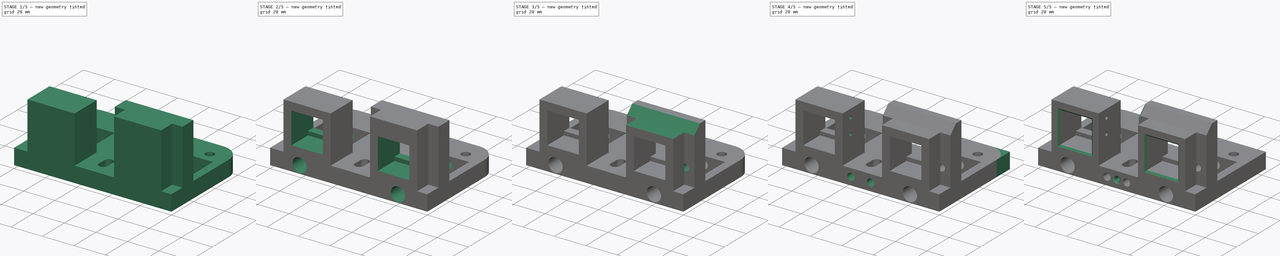
[diagram: build sequence overview — one tinted view per stage of 5, left to right]
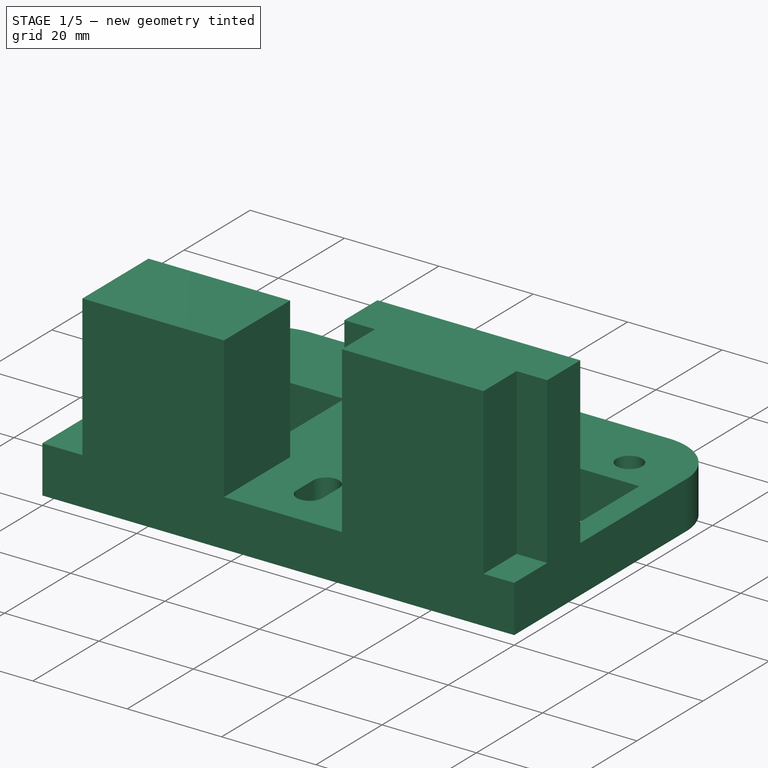
[diagram: stage 1 of 5 — iso view after this stage's code; geometry added in this stage tinted green]
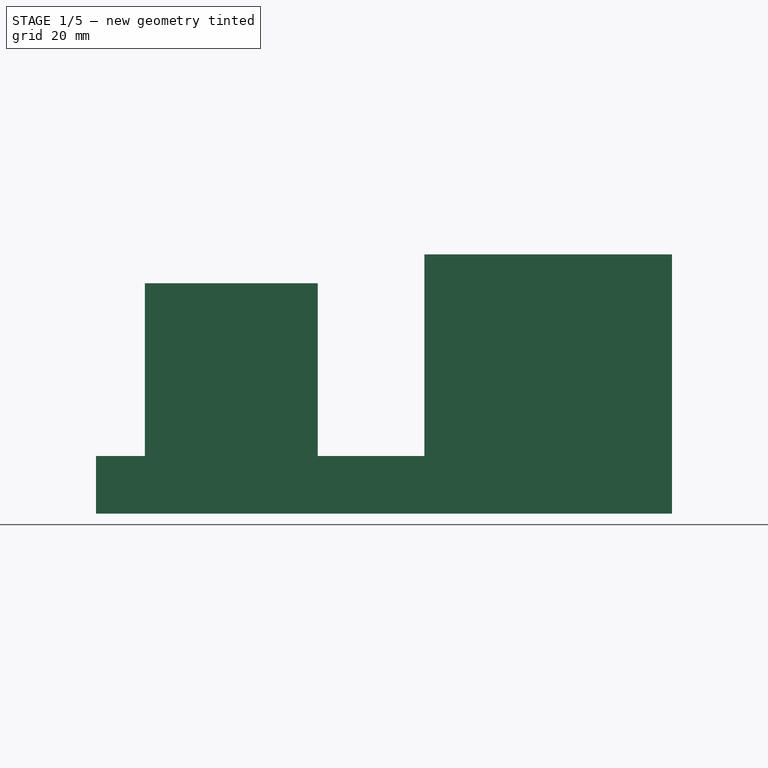
[diagram: stage 1 of 5 — front view after this stage's code; geometry added in this stage tinted green]
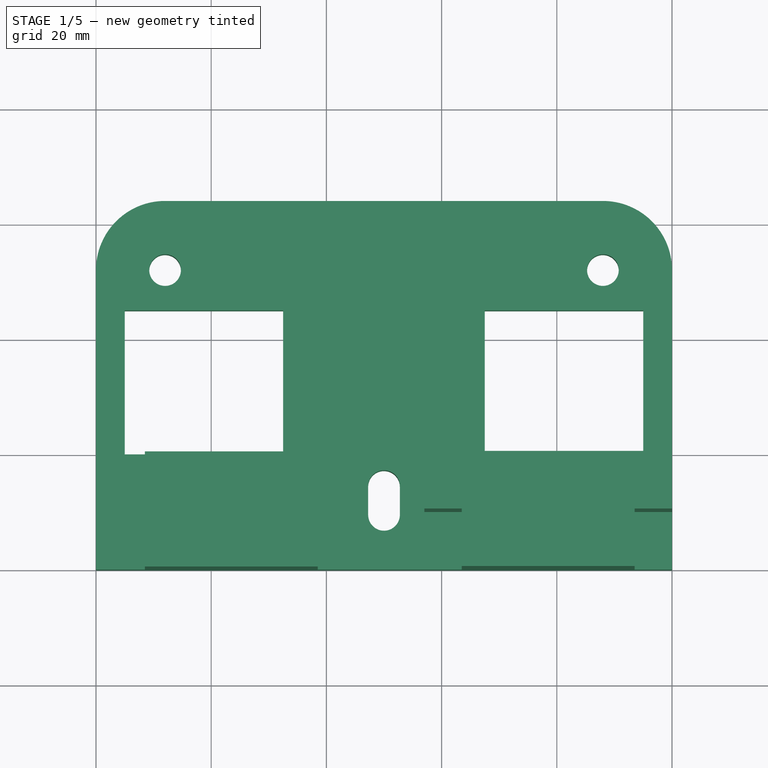
[diagram: stage 1 of 5 — top view after this stage's code; geometry added in this stage tinted green]
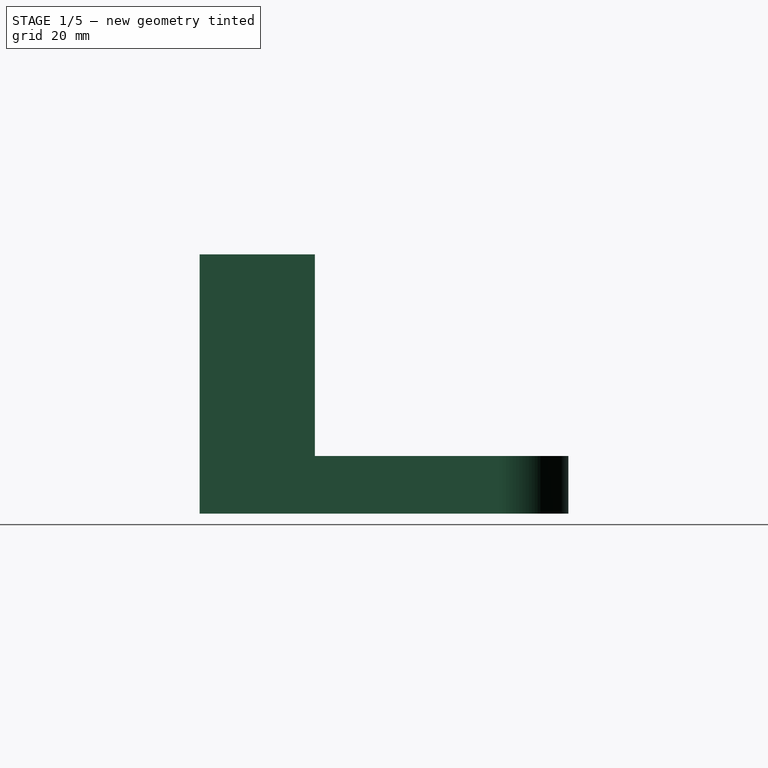
[diagram: stage 1 of 5 — right view after this stage's code; geometry added in this stage tinted green]
FCSTD DOCUMENT  (FreeCAD 0.20R29177 (Git))
Label: X gantry Top
License: All rights reserved
LicenseURL: http://en.wikipedia.org/wiki/All_rights_reserved
objects: Sketcher::SketchObject×14, PartDesign::Pocket×6, PartDesign::Pad×4, PartDesign::Hole×4, PartDesign::Chamfer×3, PartDesign::Body×1
note: 49 computed .brp shape members not serialized (recipe doc carries the construction recipe); baked Part::Feature solids carry a one-line shape summary decoded from their .brp

FEATURE [Sketcher::SketchObject] Sketch
  FullyConstrained = false
  MapMode = 5
  Support = -> [XY_Plane]
  sketch-geometry (48):
    g0: LineSegment StartX=100 StartY=0 StartZ=0 EndX=100 EndY=52 EndZ=0
    g1: LineSegment StartX=12 StartY=52 StartZ=0 EndX=88 EndY=52 EndZ=0
    g2: LineSegment StartX=88 StartY=52 StartZ=0 EndX=88 EndY=12 EndZ=0
    g3: LineSegment StartX=88 StartY=12 StartZ=0 EndX=12 EndY=12 EndZ=0
    g4: LineSegment StartX=12 StartY=12 StartZ=0 EndX=12 EndY=52 EndZ=0
    g5: ArcOfCircle CenterX=88 CenterY=52 CenterZ=0 NormalX=0 NormalY=0 NormalZ=1 AngleXU=0 Radius=12 StartAngle=4e-16 EndAngle=1.5708
    g6: LineSegment StartX=32.5 StartY=45 StartZ=0 EndX=32.5 EndY=20 EndZ=0
    g7: LineSegment StartX=32.5 StartY=20 StartZ=0 EndX=5 EndY=20 EndZ=0
    g8: ArcOfCircle CenterX=12 CenterY=52 CenterZ=0 NormalX=0 NormalY=0 NormalZ=1 AngleXU=0 Radius=12 StartAngle=1.5708 EndAngle=3.14159
    g9: LineSegment StartX=12 StartY=64 StartZ=0 EndX=88 EndY=64 EndZ=0
    g10: LineSegment StartX=5 StartY=45 StartZ=0 EndX=5 EndY=20 EndZ=0
    g11: LineSegment StartX=0 StartY=52 StartZ=0 EndX=0 EndY=0 EndZ=0
    g12: LineSegment StartX=18.75 StartY=45 StartZ=0 EndX=18.75 EndY=20 EndZ=0
    g13: LineSegment StartX=5 StartY=45 StartZ=0 EndX=18.75 EndY=45 EndZ=0
    g14: LineSegment StartX=18.75 StartY=45 StartZ=0 EndX=32.5 EndY=45 EndZ=0
    g15: LineSegment StartX=67.5 StartY=45 StartZ=0 EndX=95 EndY=45 EndZ=0
    g16: LineSegment StartX=95 StartY=45 StartZ=0 EndX=95 EndY=20 EndZ=0
    g17: LineSegment StartX=95 StartY=20 StartZ=0 EndX=67.5 EndY=20 EndZ=0
    g18: LineSegment StartX=67.5 StartY=20 StartZ=0 EndX=67.5 EndY=45 EndZ=0
    g19: LineSegment StartX=0 StartY=0 StartZ=0 EndX=100 EndY=0 EndZ=0
    g20: LineSegment StartX=12 StartY=52 StartZ=0 EndX=12 EndY=64 EndZ=0
    g21: LineSegment StartX=12 StartY=12 StartZ=0 EndX=12 EndY=0 EndZ=0
    g22: LineSegment StartX=12 StartY=52 StartZ=0 EndX=50 EndY=12 EndZ=0
    g23: LineSegment StartX=50 StartY=12 StartZ=0 EndX=88 EndY=52 EndZ=0
    g24: Circle CenterX=12 CenterY=52 CenterZ=0 NormalX=0 NormalY=0 NormalZ=1 AngleXU=0 Radius=2.75
    g25: Circle CenterX=88 CenterY=52 CenterZ=0 NormalX=0 NormalY=0 NormalZ=1 AngleXU=0 Radius=2.75
    g26: LineSegment StartX=50 StartY=12 StartZ=0 EndX=67.5 EndY=20 EndZ=0
    g27: Circle CenterX=50 CenterY=12 CenterZ=0 NormalX=0 NormalY=0 NormalZ=1 AngleXU=0 Radius=2.75
    g28: ArcOfCircle CenterX=50 CenterY=9.49999 CenterZ=0 NormalX=0 NormalY=0 NormalZ=1 AngleXU=0 Radius=2.75 StartAngle=3.14159 EndAngle=6.28319
    g29: ArcOfCircle CenterX=50 CenterY=14.5 CenterZ=0 NormalX=0 NormalY=0 NormalZ=1 AngleXU=0 Radius=2.75 StartAngle=0 EndAngle=3.14159
    g30: LineSegment StartX=52.75 StartY=9.49999 StartZ=0 EndX=52.75 EndY=14.5 EndZ=0
    g31: LineSegment StartX=47.25 StartY=9.49999 StartZ=0 EndX=47.25 EndY=14.5 EndZ=0
    g32: LineSegment StartX=50 StartY=14.5 StartZ=0 EndX=50 EndY=12 EndZ=0
    g33: LineSegment StartX=50 StartY=12 StartZ=0 EndX=50 EndY=9.49999 EndZ=0
    g34: LineSegment StartX=32.5 StartY=20 StartZ=0 EndX=50 EndY=12 EndZ=0
    g35: ArcOfCircle CenterX=42.0364 CenterY=57 CenterZ=0 NormalX=0 NormalY=0 NormalZ=1 AngleXU=0 Radius=2.7003 StartAngle=-9e-16 EndAngle=3.14159
    g36: ArcOfCircle CenterX=42.0364 CenterY=52 CenterZ=0 NormalX=0 NormalY=0 NormalZ=1 AngleXU=0 Radius=2.7003 StartAngle=3.14159 EndAngle=6.28319
    g37: LineSegment StartX=39.3361 StartY=57 StartZ=0 EndX=39.3361 EndY=52 EndZ=0
    g38: LineSegment StartX=44.7367 StartY=57 StartZ=0 EndX=44.7367 EndY=52 EndZ=0
    g39: ArcOfCircle CenterX=57.9636 CenterY=57 CenterZ=0 NormalX=0 NormalY=0 NormalZ=1 AngleXU=0 Radius=2.7003 StartAngle=5e-16 EndAngle=3.14159
    g40: ArcOfCircle CenterX=57.9636 CenterY=52 CenterZ=0 NormalX=0 NormalY=0 NormalZ=1 AngleXU=0 Radius=2.7003 StartAngle=3.14159 EndAngle=6.28319
    g41: LineSegment StartX=55.2633 StartY=57 StartZ=0 EndX=55.2633 EndY=52 EndZ=0
    g42: LineSegment StartX=60.6639 StartY=57 StartZ=0 EndX=60.6639 EndY=52 EndZ=0
    g43: LineSegment StartX=42.0364 StartY=57 StartZ=0 EndX=57.9636 EndY=57 EndZ=0
    g44: LineSegment StartX=32.5 StartY=45 StartZ=0 EndX=42.0364 EndY=57 EndZ=0
    g45: LineSegment StartX=57.9636 StartY=57 StartZ=0 EndX=67.5 EndY=45 EndZ=0
    g46: LineSegment StartX=32.5 StartY=45 StartZ=0 EndX=32.5 EndY=64 EndZ=0
    g47: LineSegment StartX=32.5 StartY=64 StartZ=0 EndX=42.0364 EndY=52 EndZ=0
  constraints (121):
    c: Vertical(g0)
    c: Coincident(g1,g2)
    c: Coincident(g2,g3)
    c: Coincident(g3,g4)
    c: Coincident(g4,g1)
    c: Horizontal(g1)
    c: Horizontal(g3)
    c: Vertical(g2)
    c: DistanceY(g4,g4) = 40
    c: Coincident(g5,g0)
    c: Coincident(g5,g1)
    c: Vertical(g6)
    c: Coincident(g7,g6)
    c: Horizontal(g7)
    c: Vertical(g4)
    c: DistanceY(g6,g6) = 25
    c: Coincident(g8,g1)
    c: Coincident(g9,g5)
    c: Equal(g5,g8)
    c: Tangent(g8,g9) = 1.5708
    c: Vertical(g10)
    c: Coincident(g11,g8)
    c: PointOnObject(g-1,g11)
    c: Coincident(g7,g10)
    c: PointOnObject(g12,g7)
    c: Vertical(g12)
    c: Coincident(g13,g10)
    c: Coincident(g13,g12)
    c: Horizontal(g13)
    c: Coincident(g14,g13)
    c: Coincident(g14,g6)
    c: Horizontal(g14)
    c: Equal(g13,g14)
    c: DistanceX(g10,g6) = 27.5
    c: Coincident(g15,g16)
    c: Coincident(g16,g17)
    c: Coincident(g17,g18)
    c: Coincident(g18,g15)
    c: Horizontal(g15)
    c: Horizontal(g17)
    c: Vertical(g16)
    c: Vertical(g18)
    c: Equal(g7,g17)
    c: PointOnObject(g6,g15)
    c: PointOnObject(g6,g17)
    c: Vertical(g11)
    c: Diameter(g8) = 24
    c: PointOnObject(g8,g1)
    c: PointOnObject(g0,g1)
    c: PointOnObject(g5,g2)
    c: Coincident(g19,g-1)
    c: Horizontal(g19)
    c: Coincident(g0,g19)
    c: PointOnObject(g11,g19)
    c: DistanceX(g19,g19) = 100
    c: Coincident(g20,g8)
    c: Coincident(g20,g8)
    c: PointOnObject(g21,g19)
    c: Vertical(g21)
    c: Equal(g20,g21)
    c: Coincident(g22,g8)
    c: PointOnObject(g22,g3)
    c: Coincident(g23,g22)
    c: Coincident(g23,g5)
    c: Equal(g22,g23)
    c: Coincident(g24,g8)
    c: Coincident(g25,g5)
    c: Diameter(g24) = 5.5
    c: Coincident(g26,g22)
    c: Coincident(g26,g17)
    c: DistanceX(g8,g10) = 5
    c: Coincident(g27,g22)
    c: Equal(g27,g25)
    c: Equal(g24,g27)
    c: Tangent(g28,g31) = 1.5708
    c: Tangent(g28,g30) = -1.5708
    c: Tangent(g30,g29) = -1.5708
    c: Tangent(g31,g29) = 1.5708
    c: Vertical(g30)
    c: Equal(g28,g29)
    c: Equal(g29,g27)
    c: Coincident(g32,g29)
    c: Coincident(g32,g27)
    c: Vertical(g32)
    c: Coincident(g33,g27)
    c: Coincident(g33,g28)
    c: Equal(g32,g33)
    c: DistanceY(g31,g31) = 5
    c: DistanceY(g11,g7) = 20
    c: Coincident(g34,g6)
    c: Coincident(g34,g22)
    c: Equal(g34,g26)
    c: Tangent(g35,g38) = 1.5708
    c: Tangent(g35,g37) = -1.5708
    c: Tangent(g37,g36) = -1.5708
    c: Tangent(g38,g36) = 1.5708
    c: Vertical(g37)
    c: Equal(g35,g36)
    c: Tangent(g39,g42) = 1.5708
    c: Tangent(g39,g41) = -1.5708
    c: Tangent(g41,g40) = -1.5708
    c: Tangent(g42,g40) = 1.5708
    c: Vertical(g41)
    c: Equal(g39,g40)
    c: Equal(g35,g39)
    c: Equal(g38,g41)
    c: Coincident(g43,g35)
    c: Coincident(g43,g39)
    c: Horizontal(g43)
    c: Coincident(g44,g6)
    c: Coincident(g44,g35)
    c: Coincident(g45,g39)
    c: Coincident(g45,g15)
    c: Equal(g45,g44)
    c: Coincident(g46,g6)
    c: PointOnObject(g46,g9)
    c: Vertical(g46)
    c: Coincident(g47,g46)
    c: Coincident(g47,g36)
    c: Equal(g47,g44)
    c: DistanceY(g40,g39) = 5
FEATURE [PartDesign::Pad] Pad
  Direction = (1,1,1)
  Length = 10
  Length2 = 100
  Profile = -> Sketch
  Type = 0
FEATURE [Sketcher::SketchObject] Sketch001
  ExternalGeometry = -> [Pad]
  FullyConstrained = true
  MapMode = 5
  Placement = pos=(0,0,10) rot=(0,0,1;0rad)
  Support = -> [Pad]
  sketch-geometry (4):
    g0: LineSegment StartX=8.5 StartY=20 StartZ=0 EndX=38.5 EndY=20 EndZ=0
    g1: LineSegment StartX=38.5 StartY=20 StartZ=0 EndX=38.5 EndY=0 EndZ=0
    g2: LineSegment StartX=38.5 StartY=0 StartZ=0 EndX=8.5 EndY=0 EndZ=0
    g3: LineSegment StartX=8.5 StartY=0 StartZ=0 EndX=8.5 EndY=20 EndZ=0
  constraints (12):
    c: Coincident(g0,g1)
    c: Coincident(g1,g2)
    c: Coincident(g2,g3)
    c: Coincident(g3,g0)
    c: Horizontal(g0)
    c: Horizontal(g2)
    c: Vertical(g1)
    c: Vertical(g3)
    c: DistanceX(g2,g2) = 30
    c: DistanceY(g3,g3) = 20
    c: PointOnObject(g-1,g2)
    c: DistanceX(g1,g-3) = 61.5
FEATURE [PartDesign::Pad] Pad001  label="Pad pipe left"
  BaseFeature = -> Pad
  Direction = (1,1,1)
  Length = 30
  Length2 = 100
  Profile = -> Sketch001
  Type = 0
FEATURE [Sketcher::SketchObject] Sketch002
  ExternalGeometry = -> [Pad001]
  FullyConstrained = true
  MapMode = 5
  Placement = pos=(0,0,10) rot=(0,0,1;0rad)
  Support = -> [Pad001]
  sketch-geometry (8):
    g0: LineSegment StartX=63.5 StartY=10 StartZ=0 EndX=57 EndY=10 EndZ=0
    g1: LineSegment StartX=93.5 StartY=10 StartZ=0 EndX=93.5 EndY=0 EndZ=0
    g2: LineSegment StartX=93.5 StartY=0 StartZ=0 EndX=63.5 EndY=0 EndZ=0
    g3: LineSegment StartX=63.5 StartY=0 StartZ=0 EndX=63.5 EndY=10 EndZ=0
    g4: LineSegment StartX=100 StartY=10 StartZ=0 EndX=100 EndY=20 EndZ=0
    g5: LineSegment StartX=100 StartY=20 StartZ=0 EndX=57 EndY=20 EndZ=0
    g6: LineSegment StartX=57 StartY=20 StartZ=0 EndX=57 EndY=10 EndZ=0
    g7: LineSegment StartX=100 StartY=10 StartZ=0 EndX=93.5 EndY=10 EndZ=0
  constraints (24):
    c: Coincident(g7,g1)
    c: Coincident(g1,g2)
    c: Coincident(g2,g3)
    c: Coincident(g3,g0)
    c: Horizontal(g0)
    c: Horizontal(g2)
    c: Vertical(g1)
    c: Vertical(g3)
    c: Coincident(g4,g5)
    c: Coincident(g5,g6)
    c: Horizontal(g5)
    c: Vertical(g4)
    c: Vertical(g6)
    c: Tangent(g0,g7)
    c: DistanceY(g4,g4) = 10
    c: Coincident(g7,g4)
    c: Equal(g6,g4)
    c: PointOnObject(g0,g6)
    c: Equal(g0,g7)
    c: PointOnObject(g-3,g2)
    c: PointOnObject(g-3,g4)
    c: DistanceX(g2,g2) = 30
    c: DistanceX(g5,g5) = 43
    c: PointOnObject(g-4,g5)
FEATURE [PartDesign::Pad] Pad002  label="Pad pipe right"
  BaseFeature = -> Pad001
  Direction = (1,1,1)
  Length = 35
  Length2 = 100
  Profile = -> Sketch002
  Type = 0
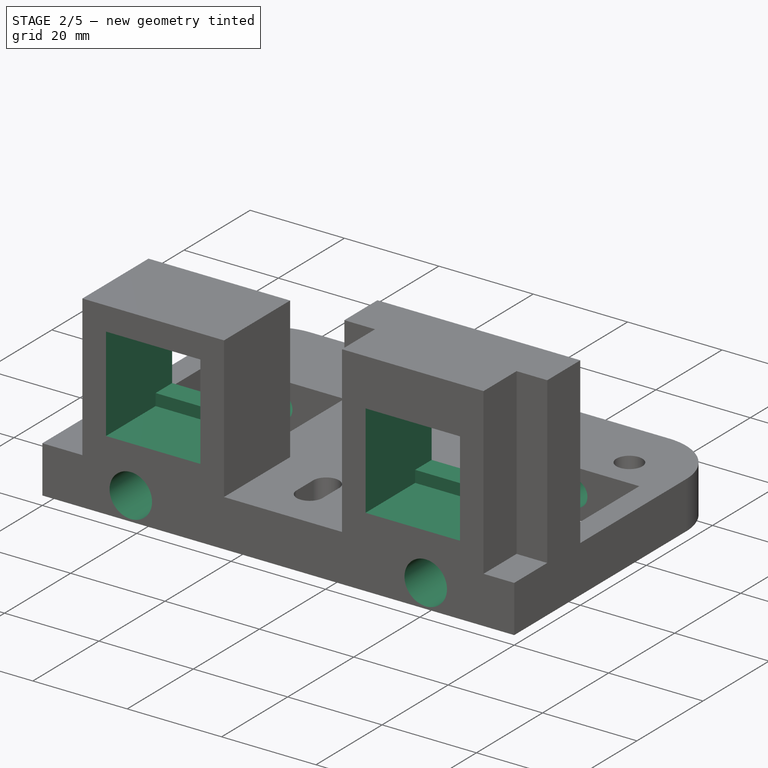
[diagram: stage 2 of 5 — iso view after this stage's code; geometry added in this stage tinted green]
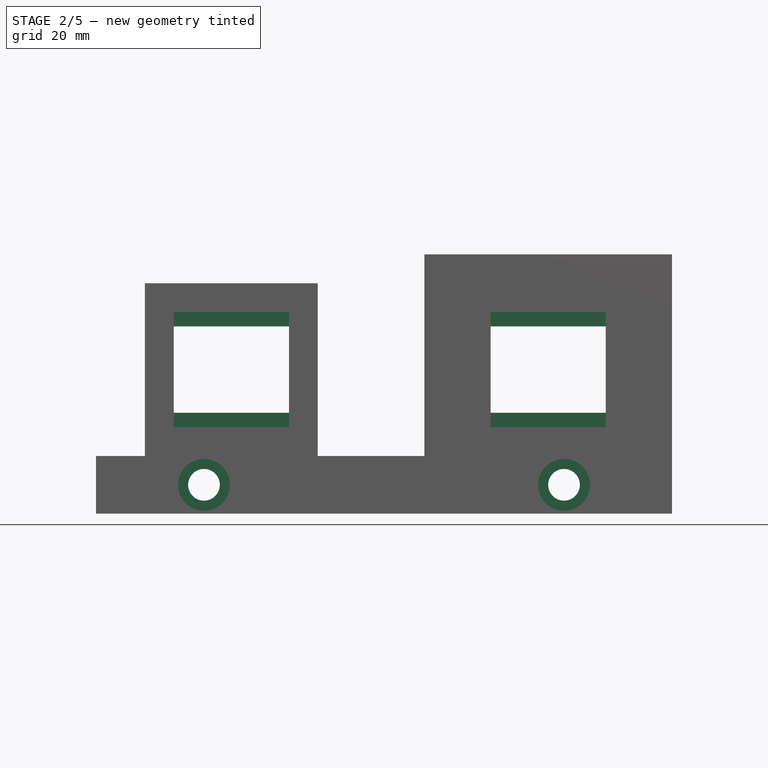
[diagram: stage 2 of 5 — front view after this stage's code; geometry added in this stage tinted green]
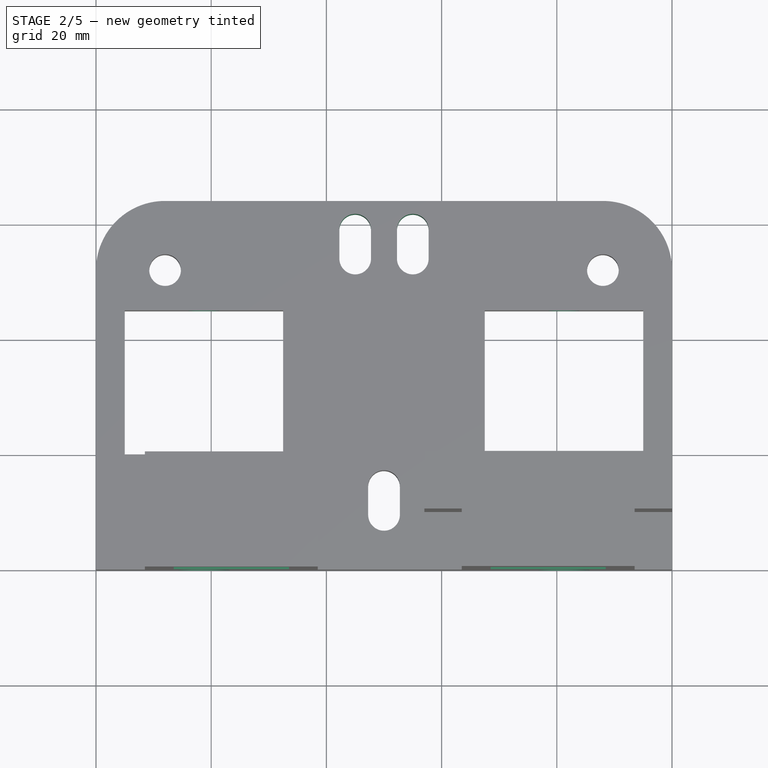
[diagram: stage 2 of 5 — top view after this stage's code; geometry added in this stage tinted green]
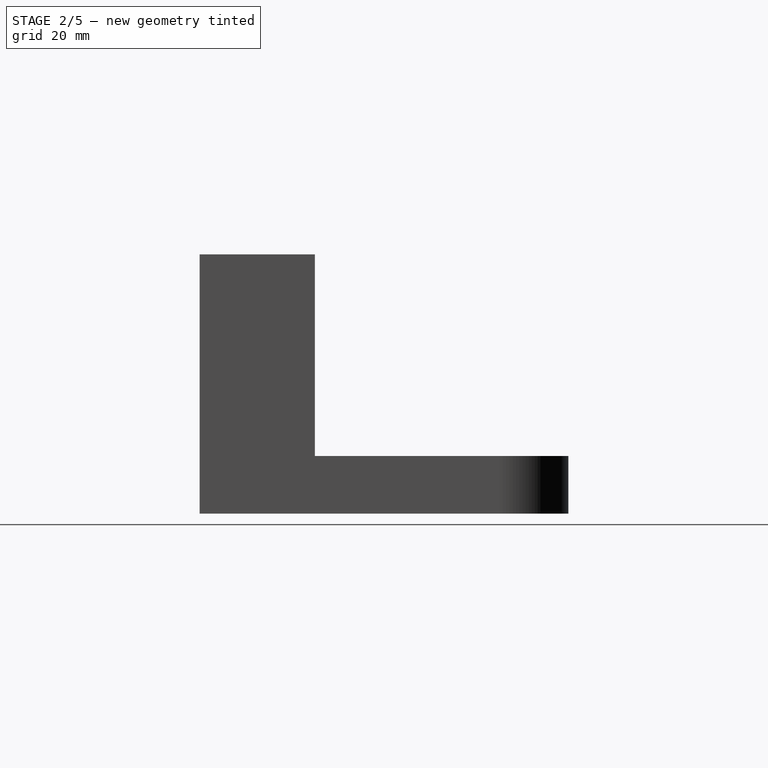
[diagram: stage 2 of 5 — right view after this stage's code; geometry added in this stage tinted green]
FEATURE [Sketcher::SketchObject] Sketch003
  ExternalGeometry = -> [Pad002]
  FullyConstrained = true
  MapMode = 5
  Placement = pos=(0,0,0) rot=(1,0,0;1.5708rad)
  Support = -> [Pad002]
  sketch-geometry (12):
    g0: LineSegment StartX=13.5 StartY=35 StartZ=0 EndX=33.5 EndY=35 EndZ=0
    g1: LineSegment StartX=33.5 StartY=35 StartZ=0 EndX=33.5 EndY=15 EndZ=0
    g2: LineSegment StartX=33.5 StartY=15 StartZ=0 EndX=13.5 EndY=15 EndZ=0
    g3: LineSegment StartX=13.5 StartY=15 StartZ=0 EndX=13.5 EndY=35 EndZ=0
    g4: LineSegment StartX=68.5 StartY=35 StartZ=0 EndX=88.5 EndY=35 EndZ=0
    g5: LineSegment StartX=88.5 StartY=35 StartZ=0 EndX=88.5 EndY=15 EndZ=0
    g6: LineSegment StartX=88.5 StartY=15 StartZ=0 EndX=68.5 EndY=15 EndZ=0
    g7: LineSegment StartX=68.5 StartY=15 StartZ=0 EndX=68.5 EndY=35 EndZ=0
    g8: LineSegment StartX=8.5 StartY=40 StartZ=0 EndX=13.5 EndY=35 EndZ=0
    g9: LineSegment StartX=33.5 StartY=35 StartZ=0 EndX=38.5 EndY=40 EndZ=0
    g10: LineSegment StartX=33.5 StartY=15 StartZ=0 EndX=38.5 EndY=10 EndZ=0
    g11: LineSegment StartX=63.5 StartY=10 StartZ=0 EndX=68.5 EndY=15 EndZ=0
  constraints (32):
    c: Coincident(g0,g1)
    c: Coincident(g1,g2)
    c: Coincident(g2,g3)
    c: Coincident(g3,g0)
    c: Horizontal(g0)
    c: Horizontal(g2)
    c: Vertical(g1)
    c: Vertical(g3)
    c: Coincident(g4,g5)
    c: Coincident(g5,g6)
    c: Coincident(g6,g7)
    c: Coincident(g7,g4)
    c: Horizontal(g4)
    c: Horizontal(g6)
    c: Vertical(g5)
    c: Vertical(g7)
    c: PointOnObject(g0,g4)
    c: Equal(g7,g1)
    c: Equal(g4,g7)
    c: Equal(g1,g0)
    c: Coincident(g8,g-3)
    c: Coincident(g8,g0)
    c: Coincident(g9,g0)
    c: Coincident(g9,g-4)
    c: Coincident(g10,g1)
    c: Coincident(g10,g-4)
    c: Equal(g8,g9)
    c: Equal(g9,g10)
    c: DistanceX(g0,g0) = 20
    c: Coincident(g11,g-5)
    c: Coincident(g11,g6)
    c: Equal(g11,g10)
FEATURE [PartDesign::Pocket] Pocket
  BaseFeature = -> Pad002
  Direction = (1,1,1)
  Length = 0
  Length2 = 100
  Offset = -5
  Profile = -> Sketch003
  Type = 3
  UpToFace = -> Pad002 [Face33]
FEATURE [Sketcher::SketchObject] Sketch004
  ExternalGeometry = -> [Pocket]
  FullyConstrained = true
  MapMode = 5
  Placement = pos=(0,0,0) rot=(1,0,0;1.5708rad)
  Support = -> [Pocket]
  sketch-geometry (8):
    g0: LineSegment StartX=13.5 StartY=32.5 StartZ=0 EndX=33.5 EndY=32.5 EndZ=0
    g1: LineSegment StartX=33.5 StartY=32.5 StartZ=0 EndX=33.5 EndY=17.5 EndZ=0
    g2: LineSegment StartX=33.5 StartY=17.5 StartZ=0 EndX=13.5 EndY=17.5 EndZ=0
    g3: LineSegment StartX=13.5 StartY=17.5 StartZ=0 EndX=13.5 EndY=32.5 EndZ=0
    g4: LineSegment StartX=88.5 StartY=32.5 StartZ=0 EndX=68.5 EndY=32.5 EndZ=0
    g5: LineSegment StartX=68.5 StartY=32.5 StartZ=0 EndX=68.5 EndY=17.5 EndZ=0
    g6: LineSegment StartX=68.5 StartY=17.5 StartZ=0 EndX=88.5 EndY=17.5 EndZ=0
    g7: LineSegment StartX=88.5 StartY=32.5 StartZ=0 EndX=88.5 EndY=17.5 EndZ=0
  constraints (24):
    c: Coincident(g0,g1)
    c: Coincident(g1,g2)
    c: Coincident(g2,g3)
    c: Coincident(g3,g0)
    c: Horizontal(g0)
    c: Horizontal(g2)
    c: Vertical(g1)
    c: Vertical(g3)
    c: Coincident(g4,g5)
    c: Coincident(g5,g6)
    c: Horizontal(g4)
    c: Horizontal(g6)
    c: Vertical(g5)
    c: Equal(g4,g0)
    c: PointOnObject(g0,g4)
    c: PointOnObject(g1,g6)
    c: PointOnObject(g-3,g3)
    c: DistanceX(g0,g0) = 20
    c: DistanceY(g3,g3) = 15
    c: DistanceY(g0,g-3) = 2.5
    c: Coincident(g7,g4)
    c: Coincident(g7,g6)
    c: PointOnObject(g-4,g5)
    c: Vertical(g7)
FEATURE [PartDesign::Pocket] Pocket001
  BaseFeature = -> Pocket
  Direction = (1,1,1)
  Length = 5
  Length2 = 100
  Profile = -> Sketch004
  Type = 1
FEATURE [Sketcher::SketchObject] Sketch005
  ExternalGeometry = -> [Pocket001]
  FullyConstrained = false
  MapMode = 5
  Placement = pos=(0,0,0) rot=(1,0,0;1.5708rad)
  Support = -> [Pocket001]
  sketch-geometry (7):
    g0: LineSegment StartX=81.25 StartY=5 StartZ=0 EndX=18.75 EndY=5 EndZ=0
    g1: Circle CenterX=81.25 CenterY=5 CenterZ=0 NormalX=0 NormalY=0 NormalZ=1 AngleXU=0 Radius=2.77068
    g2: Circle CenterX=18.75 CenterY=5 CenterZ=0 NormalX=0 NormalY=0 NormalZ=1 AngleXU=0 Radius=2.77068
    g3: LineSegment StartX=5 StartY=1e-14 StartZ=0 EndX=18.75 EndY=5 EndZ=0
    g4: LineSegment StartX=18.75 StartY=5 StartZ=0 EndX=32.5 EndY=9.8e-15 EndZ=0
    g5: LineSegment StartX=67.5 StartY=1e-14 StartZ=0 EndX=81.25 EndY=5 EndZ=0
    g6: LineSegment StartX=81.25 StartY=5 StartZ=0 EndX=95 EndY=9.8e-15 EndZ=0
  constraints (15):
    c: Horizontal(g0)
    c: Equal(g1,g2)
    c: Coincident(g3,g-4)
    c: Coincident(g3,g2)
    c: Coincident(g4,g0)
    c: Coincident(g4,g-3)
    c: Coincident(g5,g-5)
    c: Coincident(g5,g1)
    c: Coincident(g6,g1)
    c: Coincident(g6,g-6)
    c: Equal(g3,g4)
    c: Equal(g5,g6)
    c: Coincident(g0,g2)
    c: Coincident(g0,g1)
    c: DistanceY(g3,g2) = 5
FEATURE [PartDesign::Hole] Hole
  BaseFeature = -> Pocket001
  CustomThreadClearance = 0
  Depth = 25
  DepthType = 1
  Diameter = 5.5
  DrillForDepth = false
  DrillPoint = 1
  DrillPointAngle = 118
  HoleCutCountersinkAngle = 90
  HoleCutCustomValues = false
  HoleCutDepth = 15
  HoleCutDiameter = 9
  HoleCutType = 1
  ModelThread = false
  Profile = -> Sketch005
  Tapered = false
  TaperedAngle = 90
  ThreadClass = 0
  ThreadDepth = 23.5
  ThreadDepthType = 0
  ThreadDirection = 0
  ThreadFit = 0
  ThreadSize = 0
  ThreadType = 0
  Threaded = false
  UseCustomThreadClearance = false
FEATURE [Sketcher::SketchObject] Sketch010
  FullyConstrained = false
  MapMode = 5
  Placement = pos=(0,0,10) rot=(0,0,1;0rad)
  sketch-geometry (13):
    g0: ArcOfCircle CenterX=44.9989 CenterY=59.0012 CenterZ=0 NormalX=0 NormalY=0 NormalZ=1 AngleXU=0 Radius=2.75 StartAngle=1.3e-15 EndAngle=3.14159
    g1: ArcOfCircle CenterX=44.9989 CenterY=54.0012 CenterZ=0 NormalX=0 NormalY=0 NormalZ=1 AngleXU=0 Radius=2.75 StartAngle=3.14159 EndAngle=6.28319
    g2: LineSegment StartX=42.2489 StartY=59.0012 StartZ=0 EndX=42.2489 EndY=54.0012 EndZ=0
    g3: LineSegment StartX=47.7489 StartY=59.0012 StartZ=0 EndX=47.7489 EndY=54.0012 EndZ=0
    g4: ArcOfCircle CenterX=54.9989 CenterY=59.0012 CenterZ=0 NormalX=0 NormalY=0 NormalZ=1 AngleXU=0 Radius=2.75 StartAngle=1.1e-15 EndAngle=3.14159
    g5: ArcOfCircle CenterX=54.9989 CenterY=54.0012 CenterZ=0 NormalX=0 NormalY=0 NormalZ=1 AngleXU=0 Radius=2.75 StartAngle=3.14159 EndAngle=6.28319
    g6: LineSegment StartX=52.2489 StartY=59.0012 StartZ=0 EndX=52.2489 EndY=54.0012 EndZ=0
    g7: LineSegment StartX=57.7489 StartY=59.0012 StartZ=0 EndX=57.7489 EndY=54.0012 EndZ=0
    g8: LineSegment StartX=44.9989 StartY=54.0012 StartZ=0 EndX=54.9989 EndY=54.0012 EndZ=0
    g9: LineSegment StartX=44.9989 StartY=59.0012 StartZ=0 EndX=44.9989 EndY=56.5012 EndZ=0
    g10: LineSegment StartX=44.9989 StartY=56.5012 StartZ=0 EndX=44.9989 EndY=54.0012 EndZ=0
    g11: LineSegment StartX=32.4993 StartY=45.7594 StartZ=0 EndX=44.9989 EndY=54.0012 EndZ=0
    g12: LineSegment StartX=54.9989 StartY=54.0012 StartZ=0 EndX=67.4993 EndY=45.7606 EndZ=0
  constraints (28):
    c: Tangent(g0,g3) = 1.5708
    c: Tangent(g0,g2) = -1.5708
    c: Tangent(g2,g1) = -1.5708
    c: Tangent(g3,g1) = 1.5708
    c: Vertical(g2)
    c: Equal(g0,g1)
    c: Tangent(g4,g7) = 1.5708
    c: Tangent(g4,g6) = -1.5708
    c: Tangent(g6,g5) = -1.5708
    c: Tangent(g7,g5) = 1.5708
    c: Vertical(g6)
    c: Equal(g4,g5)
    c: Coincident(g8,g1)
    c: Coincident(g8,g5)
    c: Coincident(g9,g0)
    c: Coincident(g10,g9)
    c: Coincident(g10,g1)
    c: Vertical(g10)
    c: Coincident(g11,g1)
    c: Coincident(g12,g5)
    c: DistanceX(g8,g8) = 10
    c: DistanceX(g0,g0) = 5.5
    c: DistanceY(g2,g2) = 5
    c: Equal(g9,g10)
    c: Equal(g3,g6)
    c: Equal(g4,g0)
    c: Equal(g12,g11)
    c: Horizontal(g8)
FEATURE [PartDesign::Pocket] Pocket003
  BaseFeature = -> Hole
  Direction = (1,1,1)
  Length = 5
  Length2 = 100
  Profile = -> Sketch010
  Type = 1
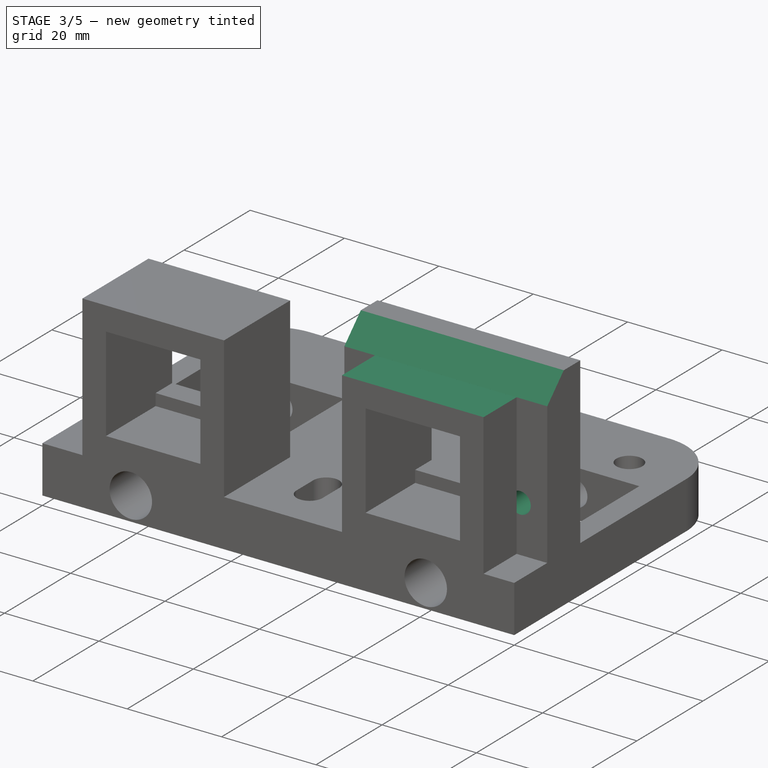
[diagram: stage 3 of 5 — iso view after this stage's code; geometry added in this stage tinted green]
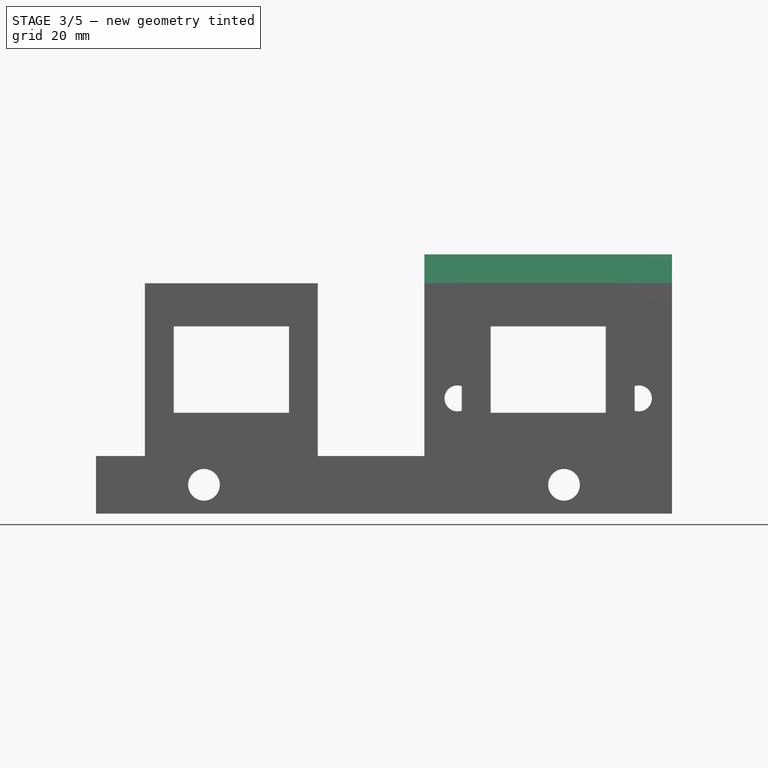
[diagram: stage 3 of 5 — front view after this stage's code; geometry added in this stage tinted green]
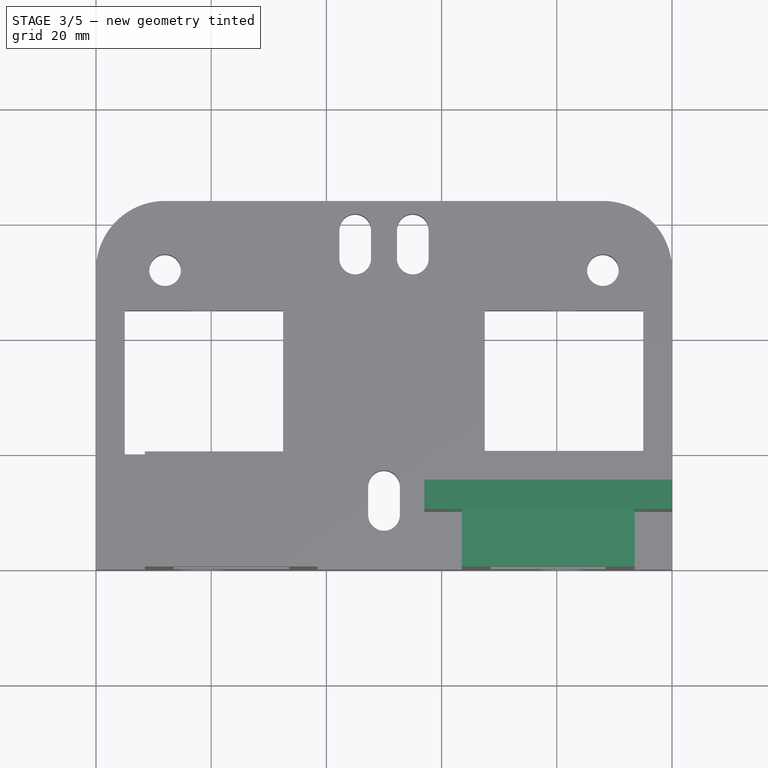
[diagram: stage 3 of 5 — top view after this stage's code; geometry added in this stage tinted green]
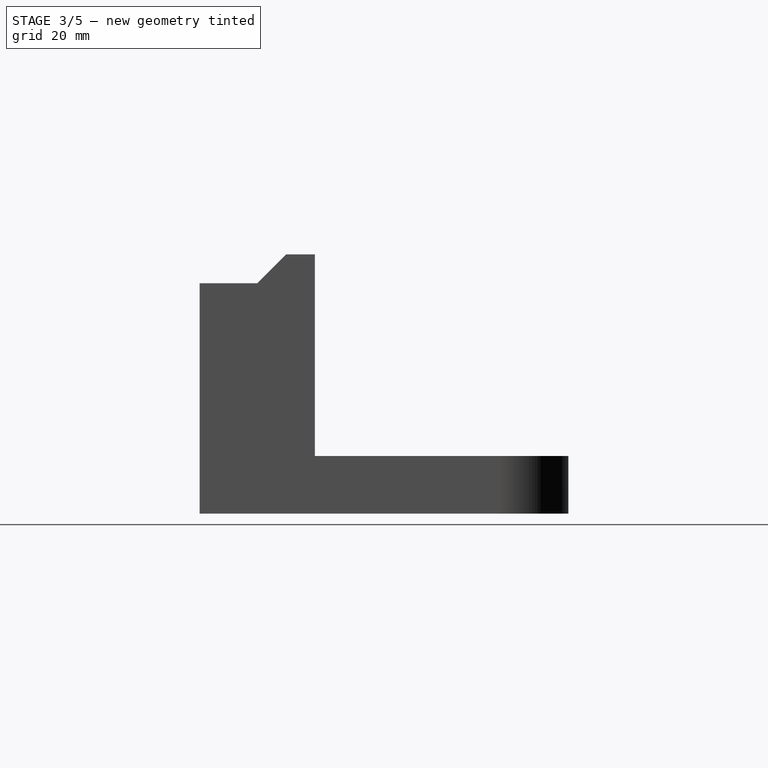
[diagram: stage 3 of 5 — right view after this stage's code; geometry added in this stage tinted green]
FEATURE [Sketcher::SketchObject] Sketch011
  ExternalGeometry = -> [Pocket003]
  FullyConstrained = true
  MapMode = 5
  Placement = pos=(0,0,45) rot=(0,0,1;0rad)
  Support = -> [Pocket003]
  sketch-geometry (4):
    g0: LineSegment StartX=63.5 StartY=3.6e-15 StartZ=0 EndX=93.5 EndY=3.6e-15 EndZ=0
    g1: LineSegment StartX=93.5 StartY=3.6e-15 StartZ=0 EndX=93.5 EndY=10 EndZ=0
    g2: LineSegment StartX=93.5 StartY=10 StartZ=0 EndX=63.5 EndY=10 EndZ=0
    g3: LineSegment StartX=63.5 StartY=10 StartZ=0 EndX=63.5 EndY=3.6e-15 EndZ=0
  constraints (10):
    c: Coincident(g0,g1)
    c: Coincident(g1,g2)
    c: Coincident(g2,g3)
    c: Coincident(g3,g0)
    c: Horizontal(g0)
    c: Horizontal(g2)
    c: Vertical(g1)
    c: Vertical(g3)
    c: Coincident(g0,g-3)
    c: Coincident(g1,g-4)
FEATURE [PartDesign::Pocket] Pocket004
  BaseFeature = -> Pocket003
  Direction = (1,1,1)
  Length = 5
  Length2 = 100
  Profile = -> Sketch011
  Type = 0
FEATURE [PartDesign::Chamfer] Chamfer
  Angle = 45
  Base = -> Pocket004 [Edge156,Edge157,Edge148]
  BaseFeature = -> Pocket004
  ChamferType = 0
  FlipDirection = false
  Size = 4.999
  Size2 = 1
  SupportTransform = false
  UseAllEdges = false
FEATURE [Sketcher::SketchObject] Sketch012
  ExternalGeometry = -> [Chamfer]
  FullyConstrained = false
  MapMode = 5
  Placement = pos=(0,20,0) rot=(0,0.707107,0.707107;3.14159rad)
  Support = -> [Chamfer]
  sketch-geometry (5):
    g0: Circle CenterX=-94.25 CenterY=20 CenterZ=0 NormalX=0 NormalY=0 NormalZ=1 AngleXU=0 Radius=1.36425
    g1: Circle CenterX=-62.75 CenterY=20 CenterZ=0 NormalX=0 NormalY=0 NormalZ=1 AngleXU=0 Radius=1.36425
    g2: LineSegment StartX=-94.25 StartY=20 StartZ=0 EndX=-62.75 EndY=20 EndZ=0
    g3: LineSegment StartX=-94.25 StartY=20 StartZ=0 EndX=-100 EndY=20 EndZ=0
    g4: LineSegment StartX=-62.75 StartY=20 StartZ=0 EndX=-57 EndY=20 EndZ=0
  constraints (13):
    c: Coincident(g2,g0)
    c: Coincident(g2,g1)
    c: Horizontal(g2)
    c: Equal(g0,g1)
    c: DistanceX(g-3,g0) = 5.75
    c: Coincident(g3,g0)
    c: PointOnObject(g3,g-3)
    c: Horizontal(g3)
    c: Coincident(g4,g1)
    c: PointOnObject(g4,g-4)
    c: Horizontal(g4)
    c: Equal(g4,g3)
    c: DistanceY(g0,g-3) = 25
FEATURE [PartDesign::Hole] Hole001
  BaseFeature = -> Chamfer
  CustomThreadClearance = 0
  Depth = 10
  DepthType = 0
  Diameter = 4.5
  DrillForDepth = false
  DrillPoint = 0
  DrillPointAngle = 118
  HoleCutCountersinkAngle = 90
  HoleCutCustomValues = false
  HoleCutDepth = 0
  HoleCutDiameter = 6.1
  HoleCutType = 0
  ModelThread = false
  Profile = -> Sketch012
  Tapered = false
  TaperedAngle = 90
  ThreadClass = 0
  ThreadDepth = 10
  ThreadDepthType = 0
  ThreadDirection = 0
  ThreadFit = 0
  ThreadSize = 0
  ThreadType = 0
  Threaded = false
  UseCustomThreadClearance = false
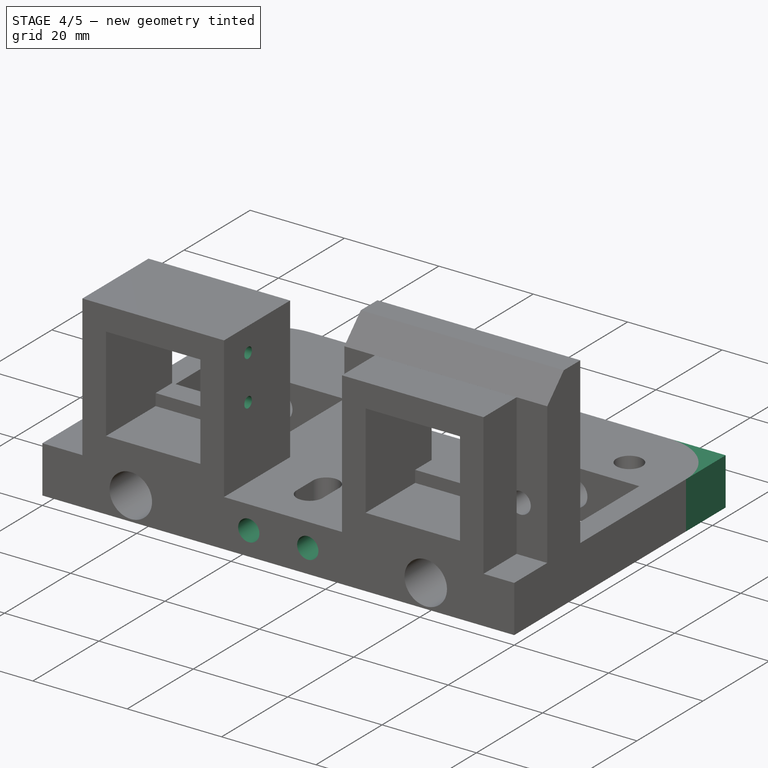
[diagram: stage 4 of 5 — iso view after this stage's code; geometry added in this stage tinted green]
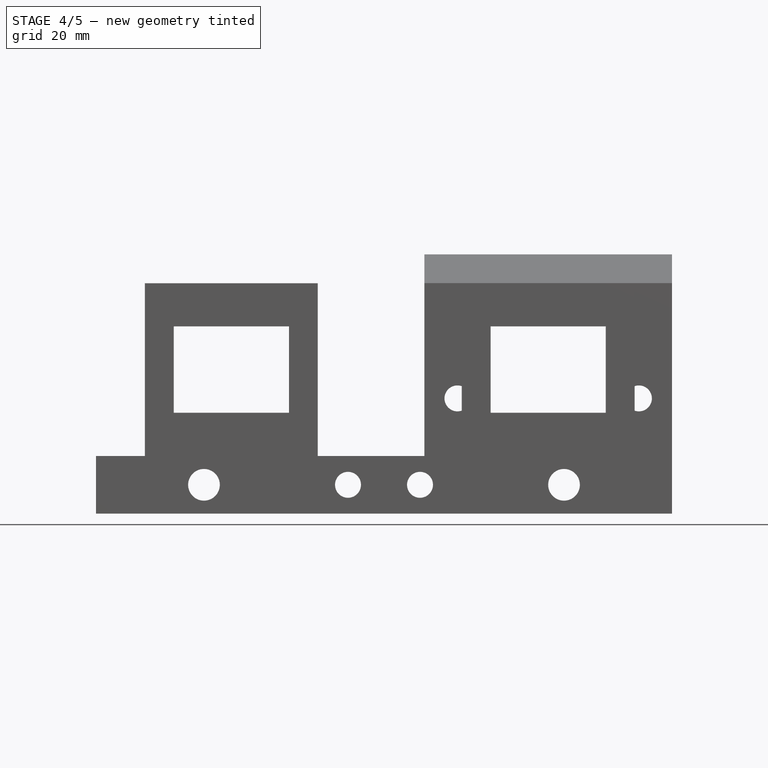
[diagram: stage 4 of 5 — front view after this stage's code; geometry added in this stage tinted green]
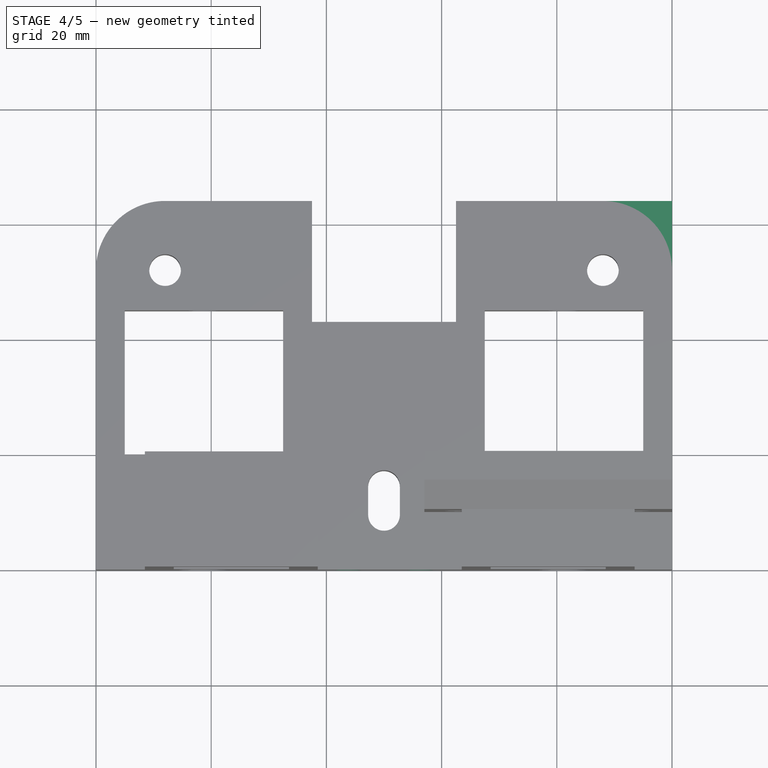
[diagram: stage 4 of 5 — top view after this stage's code; geometry added in this stage tinted green]
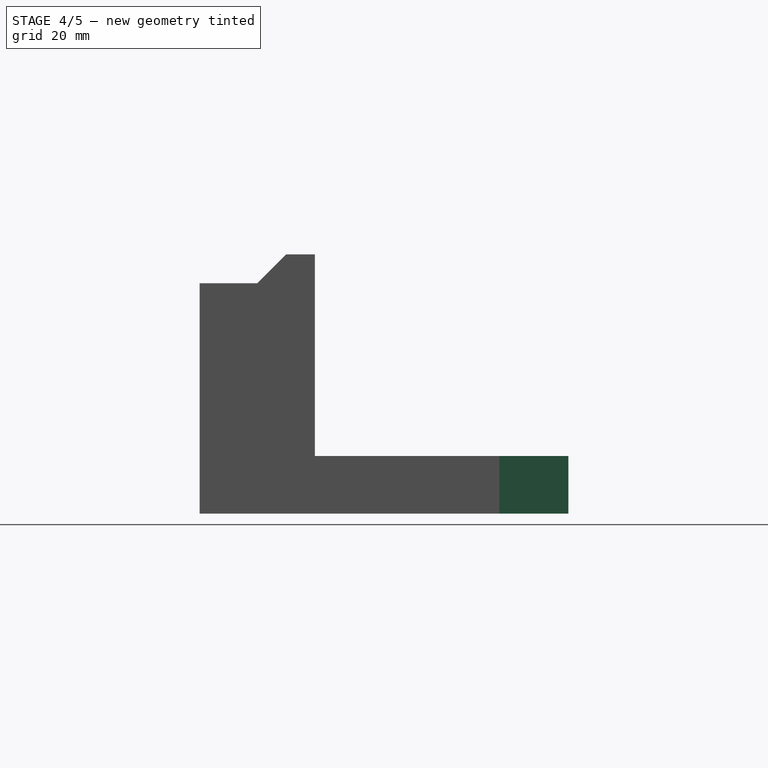
[diagram: stage 4 of 5 — right view after this stage's code; geometry added in this stage tinted green]
FEATURE [Sketcher::SketchObject] Sketch013
  ExternalGeometry = -> [Hole001]
  FullyConstrained = true
  MapMode = 5
  Placement = pos=(0,0,10) rot=(0,0,1;0rad)
  Support = -> [Hole001]
  sketch-geometry (6):
    g0: LineSegment StartX=37.5 StartY=43 StartZ=0 EndX=62.5 EndY=43 EndZ=0
    g1: LineSegment StartX=62.5 StartY=43 StartZ=0 EndX=62.5 EndY=64 EndZ=0
    g2: LineSegment StartX=62.5 StartY=64 StartZ=0 EndX=37.5 EndY=64 EndZ=0
    g3: LineSegment StartX=37.5 StartY=64 StartZ=0 EndX=37.5 EndY=43 EndZ=0
    g4: LineSegment StartX=67.5 StartY=45 StartZ=0 EndX=62.5 EndY=43 EndZ=0
    g5: LineSegment StartX=32.5 StartY=45 StartZ=0 EndX=37.5 EndY=43 EndZ=0
  constraints (16):
    c: Coincident(g0,g1)
    c: Coincident(g1,g2)
    c: Coincident(g2,g3)
    c: Coincident(g3,g0)
    c: Horizontal(g0)
    c: Horizontal(g2)
    c: Vertical(g1)
    c: Vertical(g3)
    c: Coincident(g4,g-4)
    c: Coincident(g4,g0)
    c: Coincident(g5,g-3)
    c: Coincident(g5,g0)
    c: PointOnObject(g-5,g2)
    c: DistanceY(g1,g1) = 21
    c: DistanceX(g4,g4) = 5
    c: Equal(g5,g4)
FEATURE [PartDesign::Pocket] Pocket005
  BaseFeature = -> Hole001
  Direction = (1,1,1)
  Length = 5
  Length2 = 100
  Profile = -> Sketch013
  Type = 1
FEATURE [Sketcher::SketchObject] Sketch014
  ExternalGeometry = -> [Pocket005]
  FullyConstrained = false
  MapMode = 5
  Placement = pos=(0,43,0) rot=(0,0.707107,0.707107;3.14159rad)
  Support = -> [Pocket005]
  sketch-geometry (6):
    g0: LineSegment StartX=-56.25 StartY=5 StartZ=0 EndX=-43.75 EndY=5 EndZ=0
    g1: Circle CenterX=-56.25 CenterY=5 CenterZ=0 NormalX=0 NormalY=0 NormalZ=1 AngleXU=0 Radius=2.58237
    g2: Circle CenterX=-43.75 CenterY=5 CenterZ=0 NormalX=0 NormalY=0 NormalZ=1 AngleXU=0 Radius=2.58237
    g3: LineSegment StartX=-62.5 StartY=10 StartZ=0 EndX=-56.25 EndY=5 EndZ=0
    g4: LineSegment StartX=-43.75 StartY=5 StartZ=0 EndX=-37.5 EndY=10 EndZ=0
    g5: LineSegment StartX=-43.75 StartY=5 StartZ=0 EndX=-37.5 EndY=2.993e-13 EndZ=0
  constraints (13):
    c: Horizontal(g0)
    c: Coincident(g1,g0)
    c: Coincident(g2,g0)
    c: Equal(g1,g2)
    c: Coincident(g3,g-3)
    c: Coincident(g3,g1)
    c: Coincident(g4,g2)
    c: Coincident(g4,g-4)
    c: Equal(g4,g3)
    c: Coincident(g5,g2)
    c: Coincident(g5,g-5)
    c: Equal(g4,g5)
    c: DistanceX(g0,g0) = 12.5
FEATURE [PartDesign::Hole] Hole002
  BaseFeature = -> Pocket005
  CustomThreadClearance = 0
  Depth = 25
  DepthType = 1
  Diameter = 4.5
  DrillForDepth = false
  DrillPoint = 1
  DrillPointAngle = 118
  HoleCutCountersinkAngle = 90
  HoleCutCustomValues = false
  HoleCutDepth = 0
  HoleCutDiameter = 8.5
  HoleCutType = 0
  ModelThread = false
  Profile = -> Sketch014
  Tapered = false
  TaperedAngle = 90
  ThreadClass = 0
  ThreadDepth = 23.5
  ThreadDepthType = 0
  ThreadDirection = 0
  ThreadFit = 0
  ThreadSize = 0
  ThreadType = 0
  Threaded = false
  UseCustomThreadClearance = false
FEATURE [Sketcher::SketchObject] Sketch015
  AttachmentOffset = pos=(0,0,-30) rot=(0,0,1;0rad)
  ExternalGeometry = -> [Hole002]
  FullyConstrained = true
  MapMode = 5
  Placement = pos=(38.5,0,0) rot=(0.57735,-0.57735,-0.57735;2.0944rad)
  Support = -> [Hole002]
  sketch-geometry (3):
    g0: LineSegment StartX=-7.3 StartY=34.85 StartZ=0 EndX=-7.3 EndY=25.35 EndZ=0
    g1: Circle CenterX=-7.3 CenterY=34.85 CenterZ=0 NormalX=0 NormalY=0 NormalZ=1 AngleXU=0 Radius=1.15
    g2: Circle CenterX=-7.3 CenterY=25.35 CenterZ=0 NormalX=0 NormalY=0 NormalZ=1 AngleXU=0 Radius=1.15
  constraints (8):
    c: Vertical(g0)
    c: Coincident(g1,g0)
    c: Coincident(g2,g0)
    c: Equal(g1,g2)
    c: Diameter(g1) = 2.3
    c: DistanceY(g1,g-3) = 5.15
    c: DistanceY(g0,g0) = 9.5
    c: DistanceX(g1,g-3) = 7.3
FEATURE [PartDesign::Pocket] Pocket006
  BaseFeature = -> Hole002
  Direction = (1,0,0)
  Length = 5
  Length2 = 100
  Profile = -> Sketch015
  ReferenceAxis = -> Sketch015 [N_Axis]
  Reversed = true
  Type = 0
FEATURE [Sketcher::SketchObject] Sketch016
  ExternalGeometry = -> [Pocket006]
  FullyConstrained = true
  MapMode = 5
  Placement = pos=(0,0,10) rot=(0,0,1;0rad)
  Support = -> [Pocket006]
  sketch-geometry (3):
    g0: LineSegment StartX=100 StartY=52 StartZ=0 EndX=88 EndY=64 EndZ=0
    g1: LineSegment StartX=88 StartY=64 StartZ=0 EndX=100 EndY=64 EndZ=0
    g2: LineSegment StartX=100 StartY=64 StartZ=0 EndX=100 EndY=52 EndZ=0
  constraints (9):
    c: Coincident(g1,g0)
    c: Coincident(g2,g1)
    c: Coincident(g2,g0)
    c: Horizontal(g1)
    c: Vertical(g2)
    c: PointOnObject(g-3,g2)
    c: PointOnObject(g-3,g1)
    c: PointOnObject(g-3,g0)
    c: PointOnObject(g-3,g0)
FEATURE [PartDesign::Pad] Pad003
  BaseFeature = -> Pocket006
  Direction = (0,0,1)
  Length = 10
  Length2 = 100
  Profile = -> Sketch016
  Reversed = true
  Type = 3
  UpToFace = -> Pocket006 [Face14]
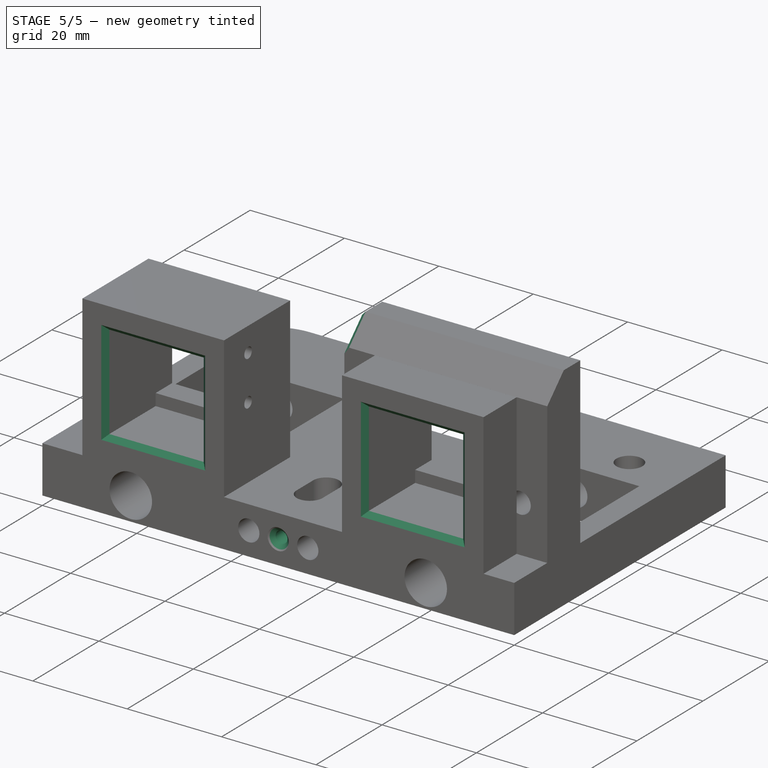
[diagram: stage 5 of 5 — iso view after this stage's code; geometry added in this stage tinted green]
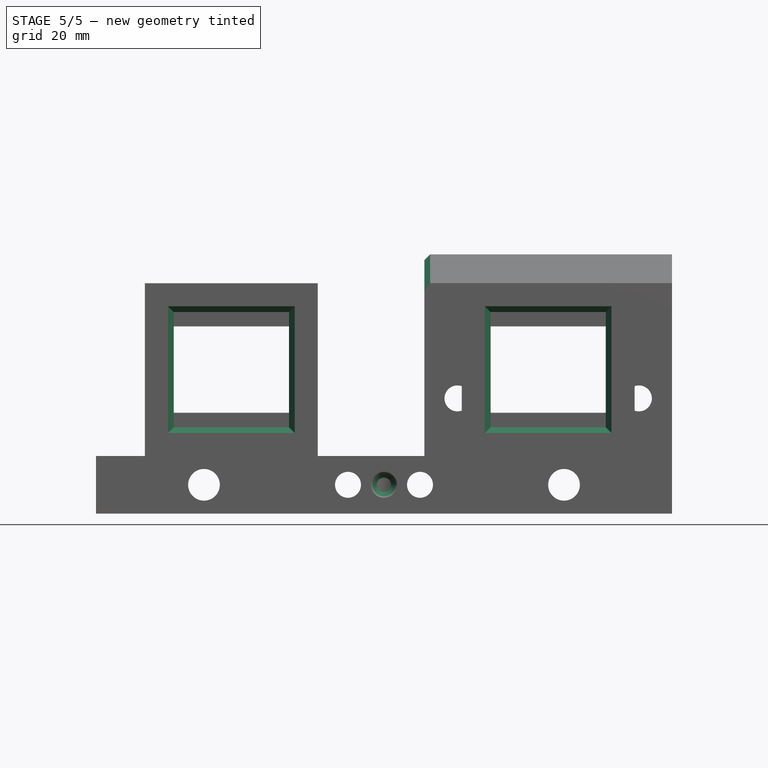
[diagram: stage 5 of 5 — front view after this stage's code; geometry added in this stage tinted green]
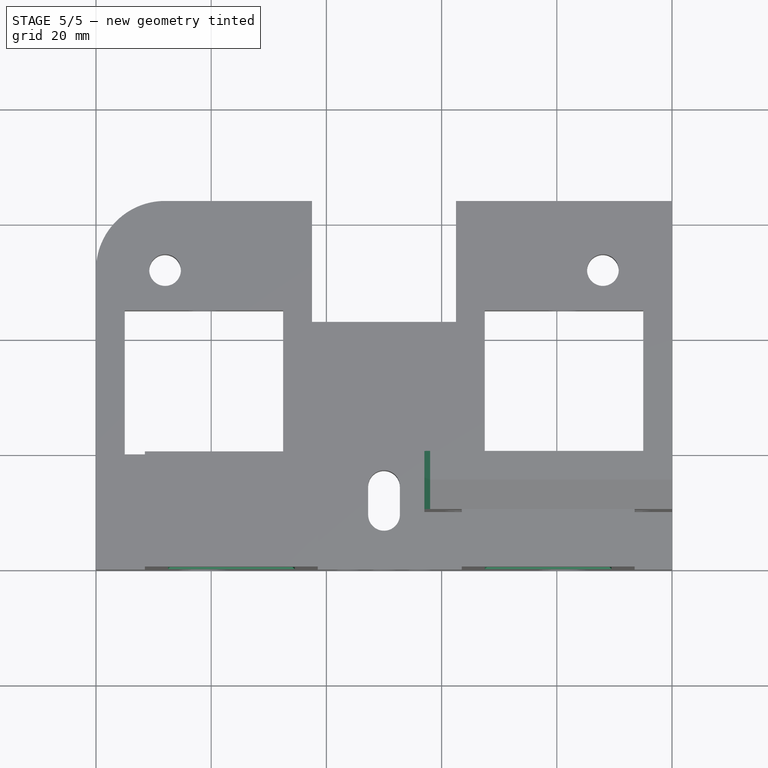
[diagram: stage 5 of 5 — top view after this stage's code; geometry added in this stage tinted green]
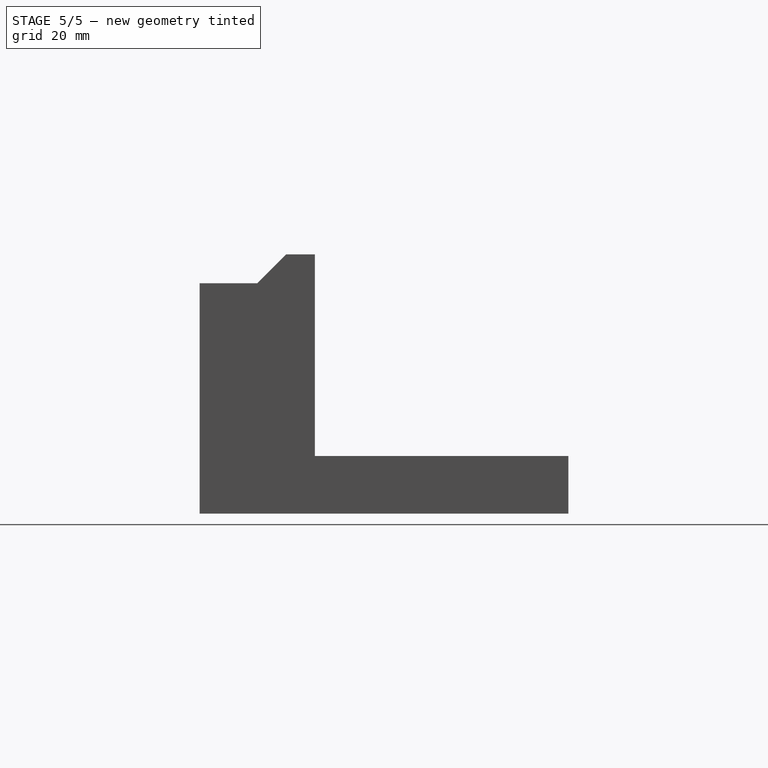
[diagram: stage 5 of 5 — right view after this stage's code; geometry added in this stage tinted green]
FEATURE [PartDesign::Chamfer] Chamfer001
  Angle = 45
  Base = -> Pad003 [Edge145,Edge146,Edge151,Edge144,Edge147,Edge149,Edge148,Edge150,Edge131,Edge129,Edge133,Edge135,Edge136,Edge134,Edge132,Edge130]
  BaseFeature = -> Pad003
  ChamferType = 0
  FlipDirection = false
  Size = 1
  Size2 = 1
  SupportTransform = false
  UseAllEdges = false
FEATURE [Sketcher::SketchObject] Sketch017
  ExternalGeometry = -> [Chamfer001]
  FullyConstrained = false
  MapMode = 5
  Placement = pos=(0,0,0) rot=(1,0,0;1.5708rad)
  Support = -> [Chamfer001]
  sketch-geometry (3):
    g0: LineSegment StartX=43.75 StartY=5 StartZ=0 EndX=50 EndY=5 EndZ=0
    g1: LineSegment StartX=50 StartY=5 StartZ=0 EndX=56.25 EndY=5 EndZ=0
    g2: Circle CenterX=50 CenterY=5 CenterZ=0 NormalX=0 NormalY=0 NormalZ=1 AngleXU=0 Radius=1.68525
  constraints (6):
    c: Coincident(g0,g-3)
    c: Horizontal(g0)
    c: Coincident(g1,g0)
    c: Coincident(g1,g-4)
    c: Equal(g0,g1)
    c: Coincident(g2,g0)
FEATURE [PartDesign::Hole] Hole003
  BaseFeature = -> Chamfer001
  CustomThreadClearance = 0
  Depth = 10
  DepthType = 0
  Diameter = 2.5
  DrillForDepth = false
  DrillPoint = 1
  DrillPointAngle = 118
  HoleCutCountersinkAngle = 90
  HoleCutCustomValues = false
  HoleCutDepth = 0
  HoleCutDiameter = 6.1
  HoleCutType = 0
  ModelThread = false
  Profile = -> Sketch017
  Tapered = false
  TaperedAngle = 90
  ThreadClass = 0
  ThreadDepth = 10
  ThreadDepthType = 0
  ThreadDirection = 0
  ThreadFit = 0
  ThreadSize = 0
  ThreadType = 0
  Threaded = false
  UseCustomThreadClearance = false
FEATURE [PartDesign::Chamfer] Chamfer002
  Angle = 45
  Base = -> Hole003 [Edge37,Edge213,Edge139,Edge143,Edge212]
  BaseFeature = -> Hole003
  ChamferType = 0
  FlipDirection = false
  Size = 1
  Size2 = 1
  SupportTransform = false
  UseAllEdges = false
FEATURE [PartDesign::Body] Body
  Group = -> [Sketch,Pad,Sketch001,Pad001,Sketch002,Pad002,Sketch003,Pocket,Sketch004,Pocket001,Sketch005,Hole,Sketch010,Pocket003,Sketch011,Pocket004,Chamfer,Sketch012,Hole001,Sketch013,Pocket005,Sketch014,Hole002,Sketch015,Pocket006,Sketch016,Pad003,Chamfer001,Sketch017,Hole003,Chamfer002]
  Origin = -> Origin
  Tip = -> Chamfer002
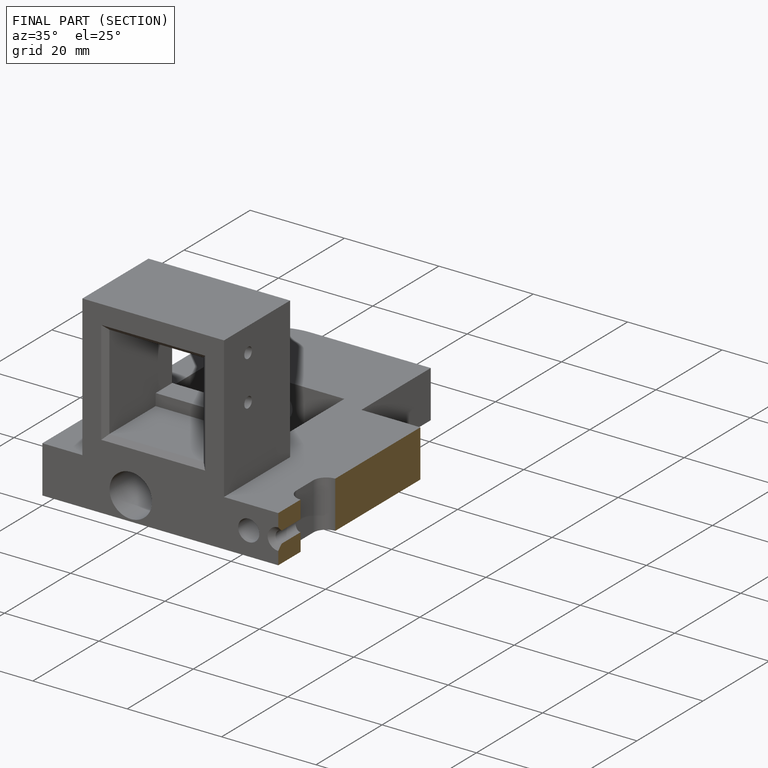
[diagram: finished part — half-section view (interior)]
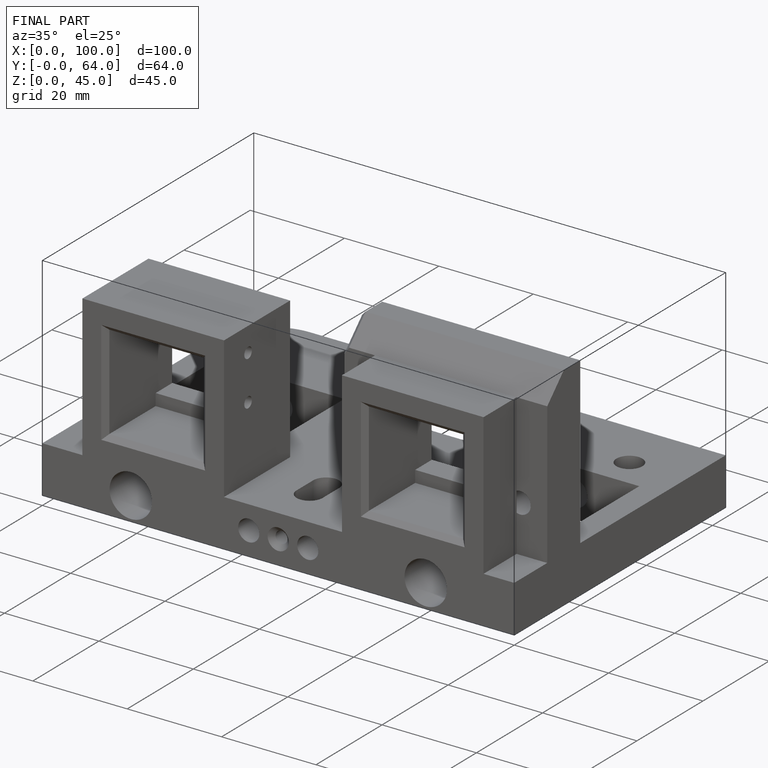
[diagram: finished part — iso view with bounding-box wireframe]
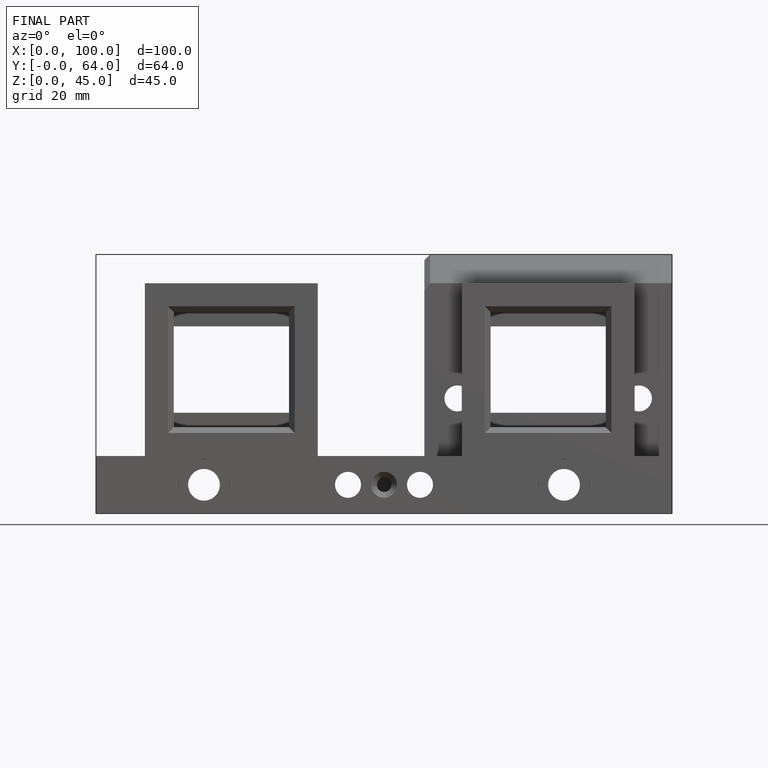
[diagram: finished part — front view with bounding-box wireframe]
